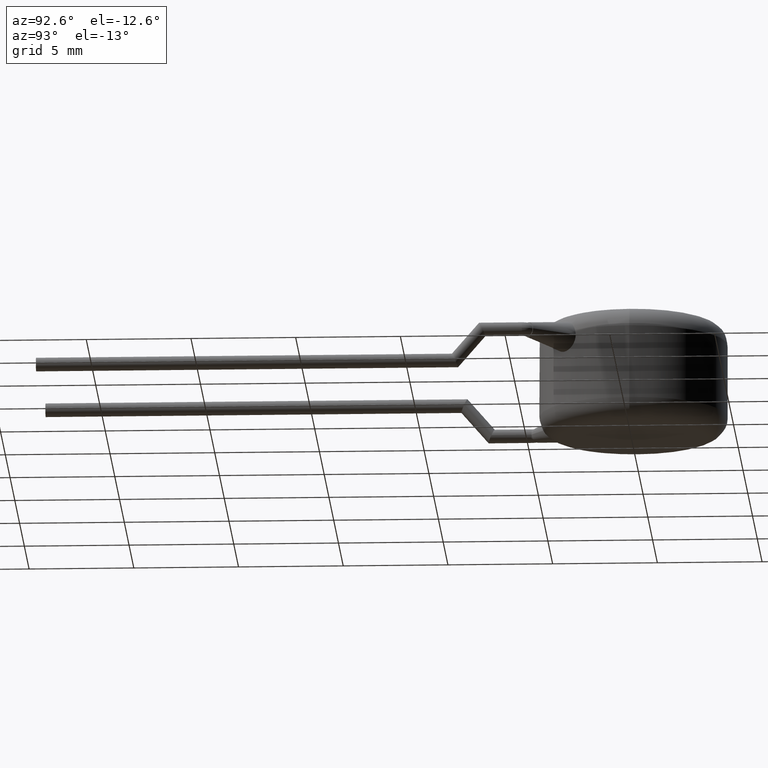
[diagram: clean part render]
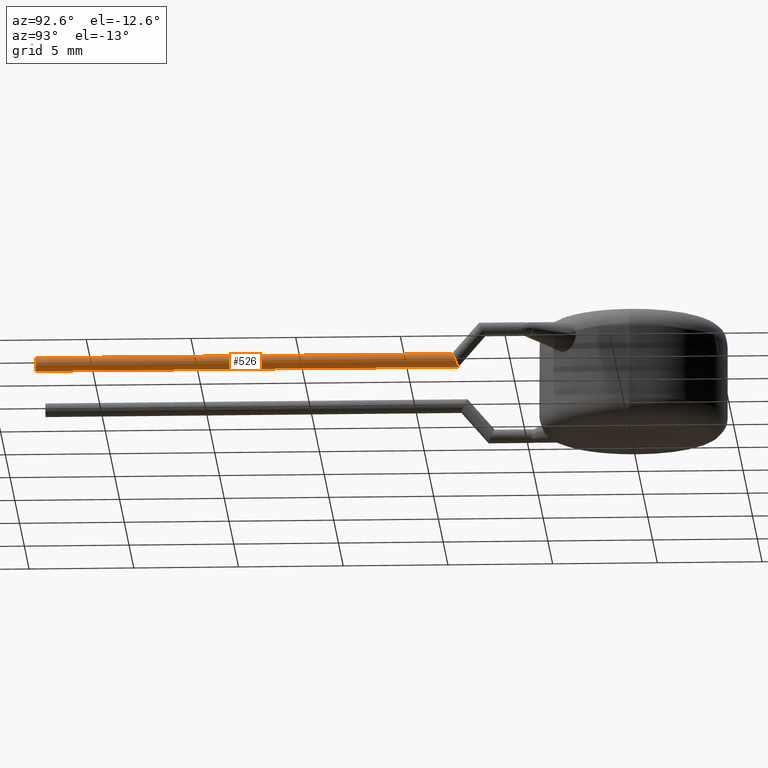
[diagram: same view with one face highlighted and labeled with its STEP entity id]
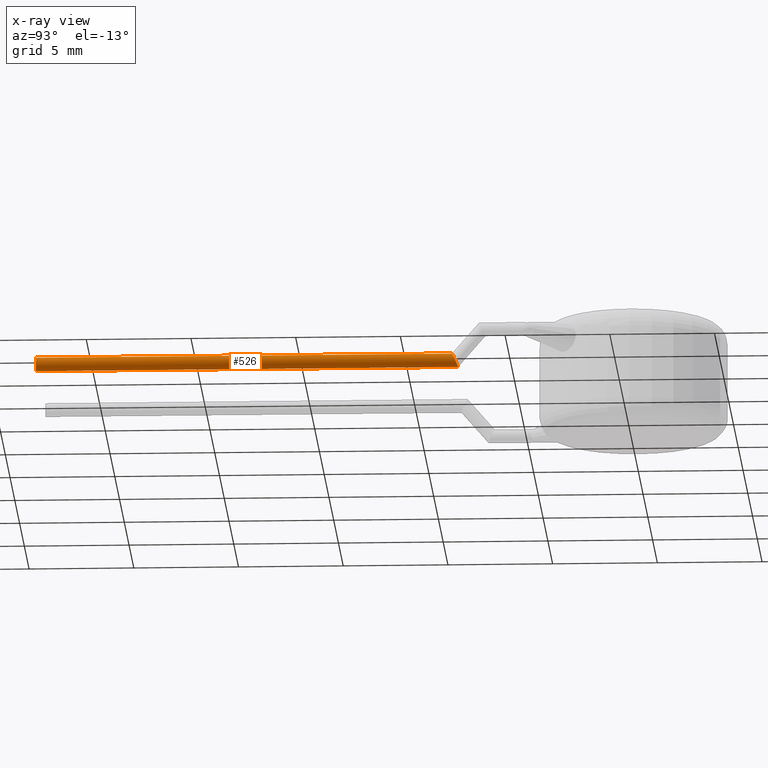
[diagram: x-ray of the same camera — body ghosted, the highlighted face saturated]
A machine part, auxiliary view. The second image highlights one B-rep face of the part: STEP entity #526.
The next image is the same camera in x-ray: the body ghosted, the highlighted face saturated — about 0% of this face is hidden behind the body in this view.
In plain terms, the highlighted cylindrical surface (edge-blend (fillet) strip) has radius 0.325 mm, axis along (0, -1, -0).
Its self-contained STEP definition (entity closure, byte-faithful):
#311 = EDGE_CURVE ( 'NONE', #1601, #1222, #3126, .T. ) ;
#338 = LINE ( 'NONE', #3074, #2409 ) ;
#349 = CARTESIAN_POINT ( 'NONE',  ( 5.649999999999995900, -8.151595613105618200, 2.425000000000000300 ) ) ;
#526 = ADVANCED_FACE ( 'NONE', ( #1042 ), #3065, .T. ) ;
#702 = ORIENTED_EDGE ( 'NONE', *, *, #311, .F. ) ;
#806 = AXIS2_PLACEMENT_3D ( 'NONE', #1180, #3506, #1517 ) ;
#960 = VERTEX_POINT ( 'NONE', #1002 ) ;
#1002 = CARTESIAN_POINT ( 'NONE',  ( 4.999999999999997300, -8.448404386894383200, 3.074999999999999300 ) ) ;
#1042 = FACE_OUTER_BOUND ( 'NONE', #3365, .T. ) ;
#1180 = CARTESIAN_POINT ( 'NONE',  ( 4.999999999999997300, -28.29999999999999700, 2.749999999999997300 ) ) ;
#1222 = VERTEX_POINT ( 'NONE', #1470 ) ;
#1470 = CARTESIAN_POINT ( 'NONE',  ( 4.999999999999997300, -28.29999999999999700, 3.074999999999996600 ) ) ;
#1517 = DIRECTION ( 'NONE',  ( 0.0000000000000000000, 0.0000000000000000000, -1.000000000000000000 ) ) ;
#1601 = VERTEX_POINT ( 'NONE', #4178 ) ;
#1639 = CARTESIAN_POINT ( 'NONE',  ( 5.649999999999995900, -8.448404386894383200, 3.074999999999999300 ) ) ;
#1658 = CARTESIAN_POINT ( 'NONE',  ( 4.999999999999997300, -8.151595613105618200, 2.425000000000000700 ) ) ;
#1708 = DIRECTION ( 'NONE',  ( 0.0000000000000000000, -1.000000000000000000, -1.301042606982605600E-016 ) ) ;
#1715 =( BOUNDED_CURVE ( )  B_SPLINE_CURVE ( 3, ( #2951, #1639, #349, #1658 ),
 .UNSPECIFIED., .F., .T. ) 
 B_SPLINE_CURVE_WITH_KNOTS ( ( 4, 4 ),
 ( 3.141592653589793100, 6.283185307179586200 ),
 .UNSPECIFIED. ) 
 CURVE ( )  GEOMETRIC_REPRESENTATION_ITEM ( )  RATIONAL_B_SPLINE_CURVE ( ( 1.000000000000000000, 0.3333333333333333700, 0.3333333333333333700, 1.000000000000000000 ) ) 
 REPRESENTATION_ITEM ( '' )  );
#2113 = DIRECTION ( 'NONE',  ( 0.0000000000000000000, -1.000000000000000000, -1.301042606982605600E-016 ) ) ;
#2409 = VECTOR ( 'NONE', #2113, 1000.000000000000000 ) ;
#2414 = EDGE_CURVE ( 'NONE', #3580, #1601, #338, .T. ) ;
#2548 = CARTESIAN_POINT ( 'NONE',  ( 4.999999999999997300, -8.300000000000000700, 2.750000000000000000 ) ) ;
#2562 = DIRECTION ( 'NONE',  ( 0.0000000000000000000, -1.000000000000000000, -1.301042606982605600E-016 ) ) ;
#2813 = AXIS2_PLACEMENT_3D ( 'NONE', #2548, #2562, #2895 ) ;
#2895 = DIRECTION ( 'NONE',  ( 0.0000000000000000000, 0.0000000000000000000, -1.000000000000000000 ) ) ;
#2951 = CARTESIAN_POINT ( 'NONE',  ( 4.999999999999997300, -8.448404386894383200, 3.074999999999999300 ) ) ;
#3013 = CARTESIAN_POINT ( 'NONE',  ( 4.999999999999997300, -8.300000000000000700, 3.074999999999999300 ) ) ;
#3065 = CYLINDRICAL_SURFACE ( 'NONE', #2813, 0.3249999999999993400 ) ;
#3074 = CARTESIAN_POINT ( 'NONE',  ( 4.999999999999997300, -8.300000000000000700, 2.425000000000000700 ) ) ;
#3126 = CIRCLE ( 'NONE', #806, 0.3249999999999993400 ) ;
#3331 = CARTESIAN_POINT ( 'NONE',  ( 4.999999999999997300, -8.151595613105618200, 2.425000000000000700 ) ) ;
#3365 = EDGE_LOOP ( 'NONE', ( #3858, #4246, #702, #3468 ) ) ;
#3468 = ORIENTED_EDGE ( 'NONE', *, *, #2414, .F. ) ;
#3506 = DIRECTION ( 'NONE',  ( 0.0000000000000000000, -1.000000000000000000, -1.301042606982605600E-016 ) ) ;
#3543 = EDGE_CURVE ( 'NONE', #960, #1222, #3990, .T. ) ;
#3559 = VECTOR ( 'NONE', #1708, 1000.000000000000000 ) ;
#3580 = VERTEX_POINT ( 'NONE', #3331 ) ;
#3858 = ORIENTED_EDGE ( 'NONE', *, *, #3863, .F. ) ;
#3863 = EDGE_CURVE ( 'NONE', #960, #3580, #1715, .T. ) ;
#3990 = LINE ( 'NONE', #3013, #3559 ) ;
#4178 = CARTESIAN_POINT ( 'NONE',  ( 4.999999999999997300, -28.29999999999999700, 2.424999999999998000 ) ) ;
#4246 = ORIENTED_EDGE ( 'NONE', *, *, #3543, .T. ) ;